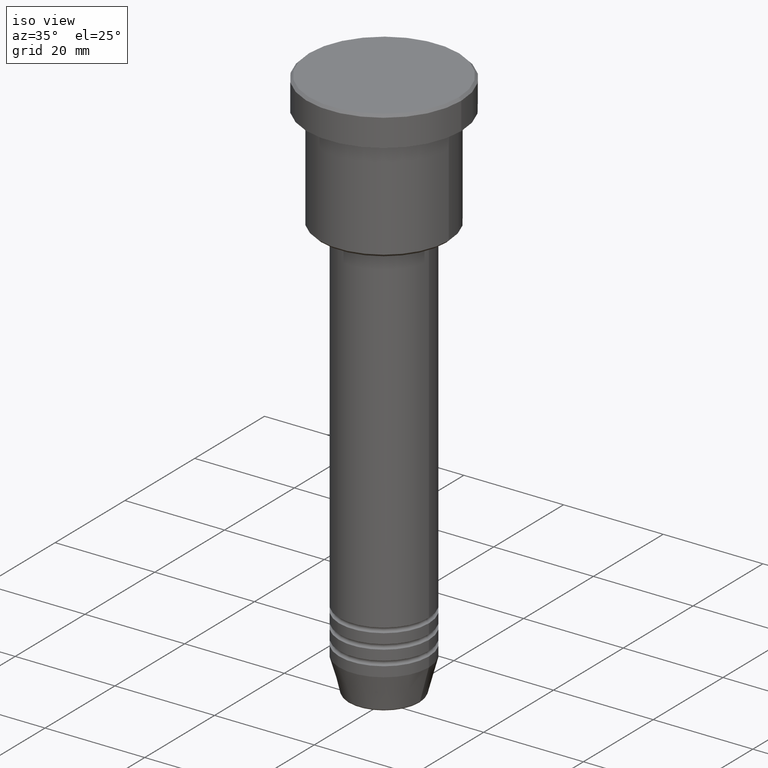
[diagram: clean part render]
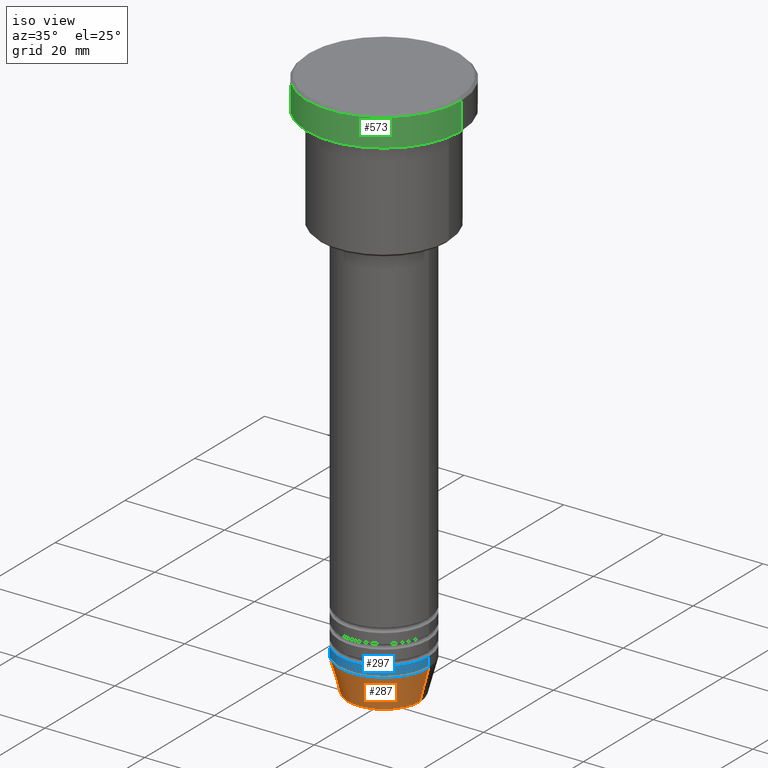
[diagram: same view with three faces highlighted in distinct colors, each labeled with its STEP entity id]
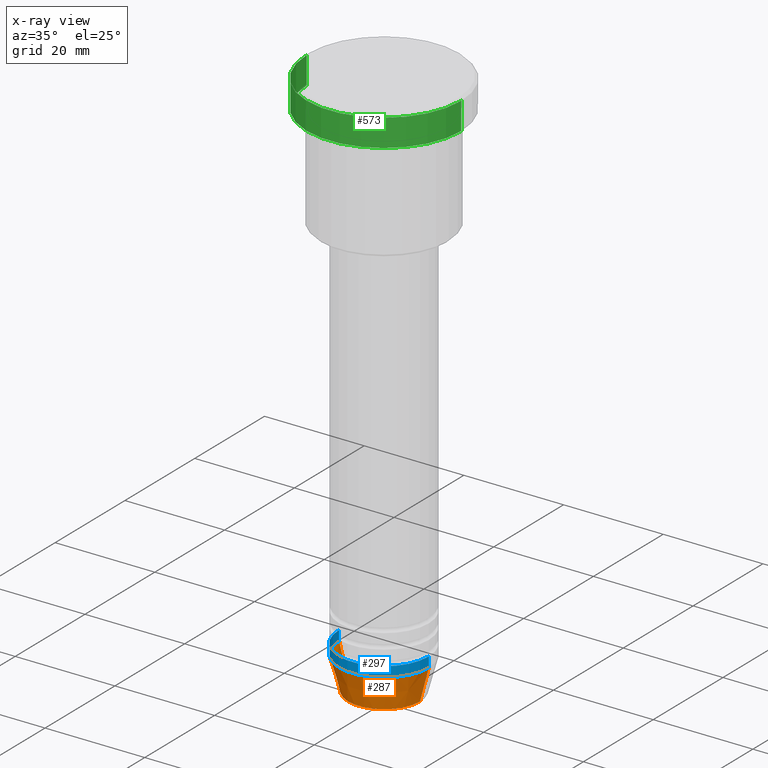
[diagram: x-ray of the same camera — body ghosted, the three highlighted faces saturated]
A machine part, iso view with three faces highlighted in distinct colors.
The next image is the same camera in x-ray (body ghosted, the three faces saturated) — at least one of them is partly hidden behind the body in this view.
Their STEP definitions:

[orange] entity #287 — the highlighted conical surface has half-angle 15 deg.
#8 = EDGE_CURVE ( 'NONE', #326, #1041, #913, .T. ) ;
#11 = CARTESIAN_POINT ( 'NONE',  ( -9.000000000000000000, 1.102182119232617714E-15, -105.0000000000000142 ) ) ;
#61 = FACE_OUTER_BOUND ( 'NONE', #413, .T. ) ;
#64 = ORIENTED_EDGE ( 'NONE', *, *, #803, .T. ) ;
#90 = CARTESIAN_POINT ( 'NONE',  ( -9.000000000000000000, 1.102182119232617714E-15, -105.0000000000000142 ) ) ;
#129 = EDGE_CURVE ( 'NONE', #326, #303, #915, .T. ) ;
#168 = DIRECTION ( 'NONE',  ( 0.2588190451025213501, 0.000000000000000000, 0.9659258262890680902 ) ) ;
#231 = DIRECTION ( 'NONE',  ( 1.000000000000000000, 0.000000000000000000, 0.000000000000000000 ) ) ;
#246 = DIRECTION ( 'NONE',  ( 1.000000000000000000, 0.000000000000000000, 0.000000000000000000 ) ) ;
#252 = DIRECTION ( 'NONE',  ( 1.000000000000000000, 0.000000000000000000, 0.000000000000000000 ) ) ;
#268 = CARTESIAN_POINT ( 'NONE',  ( 7.223655072137197486, 0.000000000000000000, -111.6294095225512564 ) ) ;
#275 = DIRECTION ( 'NONE',  ( -0.2588190451025213501, 3.169619151431772337E-17, 0.9659258262890680902 ) ) ;
#287 = ADVANCED_FACE ( 'NONE', ( #61 ), #644, .T. ) ;
#303 = VERTEX_POINT ( 'NONE', #11 ) ;
#318 = ORIENTED_EDGE ( 'NONE', *, *, #8, .T. ) ;
#325 = VECTOR ( 'NONE', #275, 1000.000000000000000 ) ;
#326 = VERTEX_POINT ( 'NONE', #1169 ) ;
#329 = CIRCLE ( 'NONE', #957, 9.000000000000000000 ) ;
#343 = DIRECTION ( 'NONE',  ( -0.000000000000000000, -0.000000000000000000, 1.000000000000000000 ) ) ;
#390 = AXIS2_PLACEMENT_3D ( 'NONE', #1050, #501, #231 ) ;
#413 = EDGE_LOOP ( 'NONE', ( #1151, #318, #64, #651 ) ) ;
#416 = CARTESIAN_POINT ( 'NONE',  ( 0.000000000000000000, 0.000000000000000000, -105.0000000000000142 ) ) ;
#423 = LINE ( 'NONE', #984, #874 ) ;
#501 = DIRECTION ( 'NONE',  ( -0.000000000000000000, -0.000000000000000000, 1.000000000000000000 ) ) ;
#644 = CONICAL_SURFACE ( 'NONE', #794, 9.000000000000000000, 0.2617993877991500740 ) ;
#651 = ORIENTED_EDGE ( 'NONE', *, *, #753, .F. ) ;
#738 = CARTESIAN_POINT ( 'NONE',  ( 9.000000000000000000, 0.000000000000000000, -105.0000000000000142 ) ) ;
#753 = EDGE_CURVE ( 'NONE', #303, #842, #329, .T. ) ;
#794 = AXIS2_PLACEMENT_3D ( 'NONE', #416, #1069, #246 ) ;
#803 = EDGE_CURVE ( 'NONE', #1041, #842, #423, .T. ) ;
#842 = VERTEX_POINT ( 'NONE', #738 ) ;
#874 = VECTOR ( 'NONE', #168, 1000.000000000000000 ) ;
#913 = CIRCLE ( 'NONE', #390, 7.223655072137197486 ) ;
#915 = LINE ( 'NONE', #90, #325 ) ;
#957 = AXIS2_PLACEMENT_3D ( 'NONE', #1094, #343, #252 ) ;
#984 = CARTESIAN_POINT ( 'NONE',  ( 9.000000000000000000, 0.000000000000000000, -105.0000000000000142 ) ) ;
#1041 = VERTEX_POINT ( 'NONE', #268 ) ;
#1050 = CARTESIAN_POINT ( 'NONE',  ( 0.000000000000000000, 0.000000000000000000, -111.6294095225512564 ) ) ;
#1069 = DIRECTION ( 'NONE',  ( -0.000000000000000000, -0.000000000000000000, 1.000000000000000000 ) ) ;
#1094 = CARTESIAN_POINT ( 'NONE',  ( 0.000000000000000000, 0.000000000000000000, -105.0000000000000142 ) ) ;
#1151 = ORIENTED_EDGE ( 'NONE', *, *, #129, .F. ) ;
#1169 = CARTESIAN_POINT ( 'NONE',  ( -7.223655072137198374, 9.934123627281771026E-16, -111.6294095225512564 ) ) ;

[blue] entity #297 — the highlighted cylindrical surface (partial cylindrical patch) has radius 9 mm, axis along (-0, -0, 1).
#11 = CARTESIAN_POINT ( 'NONE',  ( -9.000000000000000000, 1.102182119232617714E-15, -105.0000000000000142 ) ) ;
#73 = VERTEX_POINT ( 'NONE', #186 ) ;
#76 = EDGE_CURVE ( 'NONE', #842, #73, #353, .T. ) ;
#111 = EDGE_LOOP ( 'NONE', ( #425, #1024, #120, #1019 ) ) ;
#120 = ORIENTED_EDGE ( 'NONE', *, *, #76, .T. ) ;
#166 = DIRECTION ( 'NONE',  ( 1.000000000000000000, 0.000000000000000000, 0.000000000000000000 ) ) ;
#186 = CARTESIAN_POINT ( 'NONE',  ( 9.000000000000000000, 0.000000000000000000, -103.0000000000000142 ) ) ;
#227 = CARTESIAN_POINT ( 'NONE',  ( -9.000000000000000000, 1.102182119232617714E-15, -103.0000000000000142 ) ) ;
#236 = VERTEX_POINT ( 'NONE', #227 ) ;
#252 = DIRECTION ( 'NONE',  ( 1.000000000000000000, 0.000000000000000000, 0.000000000000000000 ) ) ;
#297 = ADVANCED_FACE ( 'NONE', ( #521 ), #708, .T. ) ;
#303 = VERTEX_POINT ( 'NONE', #11 ) ;
#329 = CIRCLE ( 'NONE', #957, 9.000000000000000000 ) ;
#335 = CARTESIAN_POINT ( 'NONE',  ( 9.000000000000000000, 0.000000000000000000, 0.000000000000000000 ) ) ;
#343 = DIRECTION ( 'NONE',  ( -0.000000000000000000, -0.000000000000000000, 1.000000000000000000 ) ) ;
#347 = EDGE_CURVE ( 'NONE', #303, #236, #1163, .T. ) ;
#353 = LINE ( 'NONE', #335, #524 ) ;
#425 = ORIENTED_EDGE ( 'NONE', *, *, #347, .F. ) ;
#434 = DIRECTION ( 'NONE',  ( -0.000000000000000000, -0.000000000000000000, 1.000000000000000000 ) ) ;
#437 = CARTESIAN_POINT ( 'NONE',  ( 0.000000000000000000, 0.000000000000000000, 0.000000000000000000 ) ) ;
#473 = CIRCLE ( 'NONE', #1126, 9.000000000000000000 ) ;
#480 = DIRECTION ( 'NONE',  ( 1.000000000000000000, 0.000000000000000000, 0.000000000000000000 ) ) ;
#521 = FACE_OUTER_BOUND ( 'NONE', #111, .T. ) ;
#524 = VECTOR ( 'NONE', #996, 1000.000000000000000 ) ;
#708 = CYLINDRICAL_SURFACE ( 'NONE', #955, 9.000000000000000000 ) ;
#738 = CARTESIAN_POINT ( 'NONE',  ( 9.000000000000000000, 0.000000000000000000, -105.0000000000000142 ) ) ;
#753 = EDGE_CURVE ( 'NONE', #303, #842, #329, .T. ) ;
#824 = CARTESIAN_POINT ( 'NONE',  ( 0.000000000000000000, 0.000000000000000000, -103.0000000000000142 ) ) ;
#842 = VERTEX_POINT ( 'NONE', #738 ) ;
#955 = AXIS2_PLACEMENT_3D ( 'NONE', #437, #1127, #480 ) ;
#957 = AXIS2_PLACEMENT_3D ( 'NONE', #1094, #343, #252 ) ;
#980 = EDGE_CURVE ( 'NONE', #236, #73, #473, .T. ) ;
#988 = VECTOR ( 'NONE', #1006, 1000.000000000000000 ) ;
#996 = DIRECTION ( 'NONE',  ( -0.000000000000000000, -0.000000000000000000, 1.000000000000000000 ) ) ;
#1006 = DIRECTION ( 'NONE',  ( -0.000000000000000000, -0.000000000000000000, 1.000000000000000000 ) ) ;
#1019 = ORIENTED_EDGE ( 'NONE', *, *, #980, .F. ) ;
#1020 = CARTESIAN_POINT ( 'NONE',  ( -9.000000000000000000, 1.102182119232617714E-15, 0.000000000000000000 ) ) ;
#1024 = ORIENTED_EDGE ( 'NONE', *, *, #753, .T. ) ;
#1094 = CARTESIAN_POINT ( 'NONE',  ( 0.000000000000000000, 0.000000000000000000, -105.0000000000000142 ) ) ;
#1126 = AXIS2_PLACEMENT_3D ( 'NONE', #824, #434, #166 ) ;
#1127 = DIRECTION ( 'NONE',  ( -0.000000000000000000, -0.000000000000000000, 1.000000000000000000 ) ) ;
#1163 = LINE ( 'NONE', #1020, #988 ) ;

[green] entity #573 — the highlighted cylindrical surface (partial cylindrical patch) has radius 15.5 mm, axis along (-0, -0, 1).
#1 = LINE ( 'NONE', #725, #282 ) ;
#13 = CARTESIAN_POINT ( 'NONE',  ( 15.50000000000000000, 0.000000000000000000, -0.4999999999999987232 ) ) ;
#34 = ORIENTED_EDGE ( 'NONE', *, *, #689, .T. ) ;
#59 = EDGE_LOOP ( 'NONE', ( #492, #34, #608, #712 ) ) ;
#170 = CYLINDRICAL_SURFACE ( 'NONE', #838, 15.50000000000000000 ) ;
#173 = LINE ( 'NONE', #442, #779 ) ;
#258 = CIRCLE ( 'NONE', #490, 15.50000000000000000 ) ;
#282 = VECTOR ( 'NONE', #633, 1000.000000000000000 ) ;
#350 = AXIS2_PLACEMENT_3D ( 'NONE', #846, #704, #1160 ) ;
#426 = CIRCLE ( 'NONE', #350, 15.50000000000000000 ) ;
#442 = CARTESIAN_POINT ( 'NONE',  ( -15.50000000000000000, 1.898202538678397557E-15, 0.000000000000000000 ) ) ;
#467 = VERTEX_POINT ( 'NONE', #13 ) ;
#490 = AXIS2_PLACEMENT_3D ( 'NONE', #837, #752, #576 ) ;
#492 = ORIENTED_EDGE ( 'NONE', *, *, #994, .F. ) ;
#529 = DIRECTION ( 'NONE',  ( -0.000000000000000000, -0.000000000000000000, 1.000000000000000000 ) ) ;
#539 = DIRECTION ( 'NONE',  ( 1.000000000000000000, 0.000000000000000000, 0.000000000000000000 ) ) ;
#573 = ADVANCED_FACE ( 'NONE', ( #646 ), #170, .T. ) ;
#576 = DIRECTION ( 'NONE',  ( 1.000000000000000000, 0.000000000000000000, 0.000000000000000000 ) ) ;
#608 = ORIENTED_EDGE ( 'NONE', *, *, #866, .T. ) ;
#633 = DIRECTION ( 'NONE',  ( -0.000000000000000000, -0.000000000000000000, 1.000000000000000000 ) ) ;
#634 = CARTESIAN_POINT ( 'NONE',  ( -15.50000000000000000, 1.898202538678397557E-15, -5.999999999999995559 ) ) ;
#646 = FACE_OUTER_BOUND ( 'NONE', #59, .T. ) ;
#689 = EDGE_CURVE ( 'NONE', #1047, #1068, #426, .T. ) ;
#704 = DIRECTION ( 'NONE',  ( -0.000000000000000000, -0.000000000000000000, 1.000000000000000000 ) ) ;
#710 = EDGE_CURVE ( 'NONE', #467, #863, #258, .T. ) ;
#712 = ORIENTED_EDGE ( 'NONE', *, *, #710, .T. ) ;
#725 = CARTESIAN_POINT ( 'NONE',  ( 15.50000000000000000, 0.000000000000000000, 0.000000000000000000 ) ) ;
#752 = DIRECTION ( 'NONE',  ( 0.000000000000000000, 0.000000000000000000, -1.000000000000000000 ) ) ;
#779 = VECTOR ( 'NONE', #923, 1000.000000000000000 ) ;
#827 = CARTESIAN_POINT ( 'NONE',  ( 0.000000000000000000, 0.000000000000000000, 0.000000000000000000 ) ) ;
#837 = CARTESIAN_POINT ( 'NONE',  ( 0.000000000000000000, 0.000000000000000000, -0.4999999999999987232 ) ) ;
#838 = AXIS2_PLACEMENT_3D ( 'NONE', #827, #529, #539 ) ;
#846 = CARTESIAN_POINT ( 'NONE',  ( 0.000000000000000000, 0.000000000000000000, -5.999999999999995559 ) ) ;
#863 = VERTEX_POINT ( 'NONE', #912 ) ;
#866 = EDGE_CURVE ( 'NONE', #1068, #467, #1, .T. ) ;
#912 = CARTESIAN_POINT ( 'NONE',  ( -15.50000000000000000, 1.898202538678397557E-15, -0.4999999999999987232 ) ) ;
#923 = DIRECTION ( 'NONE',  ( -0.000000000000000000, -0.000000000000000000, 1.000000000000000000 ) ) ;
#994 = EDGE_CURVE ( 'NONE', #1047, #863, #173, .T. ) ;
#1047 = VERTEX_POINT ( 'NONE', #634 ) ;
#1068 = VERTEX_POINT ( 'NONE', #1092 ) ;
#1092 = CARTESIAN_POINT ( 'NONE',  ( 15.50000000000000000, 0.000000000000000000, -5.999999999999995559 ) ) ;
#1160 = DIRECTION ( 'NONE',  ( 1.000000000000000000, 0.000000000000000000, 0.000000000000000000 ) ) ;